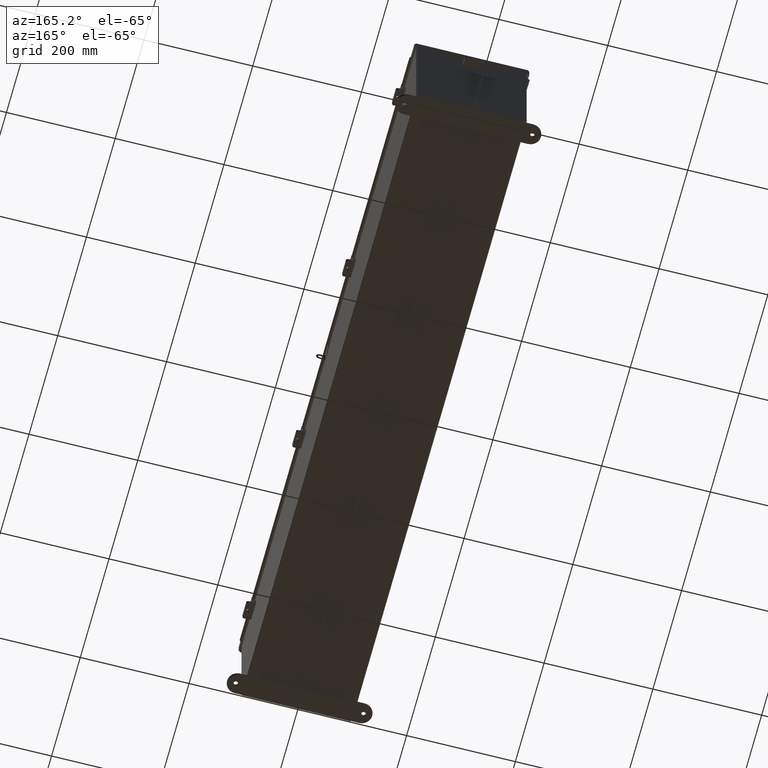
[diagram: clean part render]
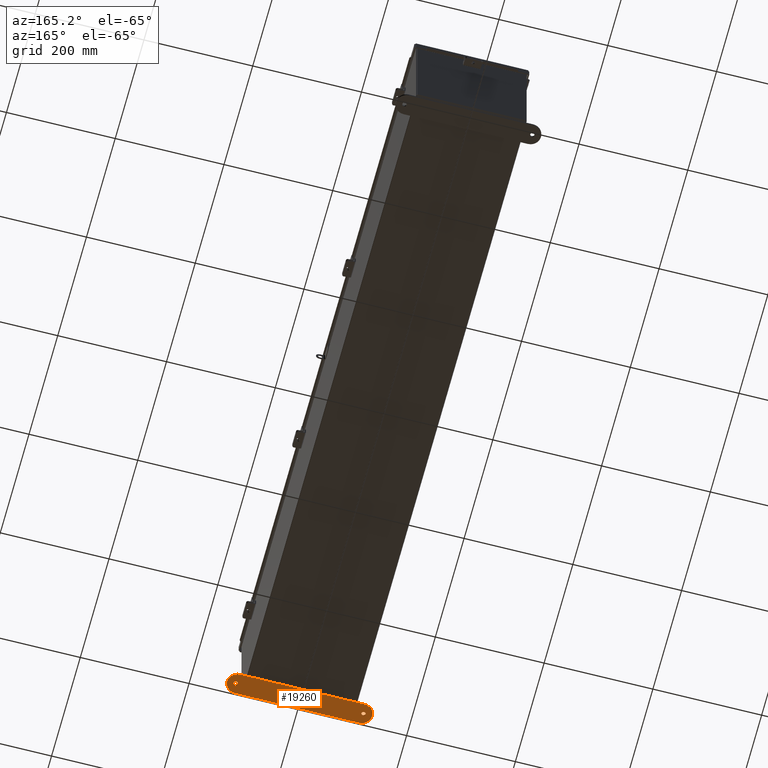
[diagram: same view with one face highlighted and labeled with its STEP entity id]
A machine part, auxiliary view. The second image highlights one B-rep face of the part: STEP entity #19260.
In plain terms, the highlighted planar face has unit normal (0, 0, -1).
Its self-contained STEP definition (entity closure, byte-faithful):
#3 = ORIENTED_EDGE ( 'NONE', *, *, #31226, .F. ) ;
#422 = CARTESIAN_POINT ( 'NONE',  ( -4.625000000000000000, 0.4120940649496085400, -0.1345000000000000100 ) ) ;
#710 = DIRECTION ( 'NONE',  ( -1.000000000000000000, 0.0000000000000000000, 0.0000000000000000000 ) ) ;
#2557 = EDGE_CURVE ( 'NONE', #21241, #34743, #15478, .T. ) ;
#2966 = CARTESIAN_POINT ( 'NONE',  ( 4.625000000000000000, 0.4120940649496085400, -0.1345000000000000100 ) ) ;
#3250 = DIRECTION ( 'NONE',  ( -1.000000000000000000, 0.0000000000000000000, 0.0000000000000000000 ) ) ;
#3530 = AXIS2_PLACEMENT_3D ( 'NONE', #34478, #17607, #710 ) ;
#3792 = CIRCLE ( 'NONE', #19156, 0.1564999999999992800 ) ;
#4240 = ORIENTED_EDGE ( 'NONE', *, *, #33153, .T. ) ;
#4517 = CARTESIAN_POINT ( 'NONE',  ( 4.499999999999999100, 0.4120940649496125900, -0.1345000000000000100 ) ) ;
#5586 = ORIENTED_EDGE ( 'NONE', *, *, #28495, .T. ) ;
#5805 = DIRECTION ( 'NONE',  ( -1.000000000000000000, 0.0000000000000000000, 0.0000000000000000000 ) ) ;
#6094 = CARTESIAN_POINT ( 'NONE',  ( -4.499999999999999100, 1.162094064949612300, -0.1345000000000000100 ) ) ;
#6168 = FACE_OUTER_BOUND ( 'NONE', #9466, .T. ) ;
#6298 = CIRCLE ( 'NONE', #3530, 0.1564999999999992800 ) ;
#6320 = CARTESIAN_POINT ( 'NONE',  ( -4.625000000000000000, 0.4120940649496085400, -0.1345000000000000100 ) ) ;
#6804 = EDGE_CURVE ( 'NONE', #34088, #21015, #6298, .T. ) ;
#7049 = AXIS2_PLACEMENT_3D ( 'NONE', #27253, #10316, #30054 ) ;
#7324 = VERTEX_POINT ( 'NONE', #6094 ) ;
#8399 = CARTESIAN_POINT ( 'NONE',  ( -4.468500000000000600, 0.4120940649496085400, -0.1345000000000000100 ) ) ;
#8478 = DIRECTION ( 'NONE',  ( 0.0000000000000000000, 0.0000000000000000000, 1.000000000000000000 ) ) ;
#9177 = DIRECTION ( 'NONE',  ( 1.000000000000000000, -1.214154663850783900E-016, 0.0000000000000000000 ) ) ;
#9188 = DIRECTION ( 'NONE',  ( -1.000000000000000000, 0.0000000000000000000, 0.0000000000000000000 ) ) ;
#9466 = EDGE_LOOP ( 'NONE', ( #28489, #28153, #33586, #35292, #3 ) ) ;
#9771 = VECTOR ( 'NONE', #12693, 39.37007874015748100 ) ;
#10316 = DIRECTION ( 'NONE',  ( 0.0000000000000000000, 0.0000000000000000000, 1.000000000000000000 ) ) ;
#10352 = AXIS2_PLACEMENT_3D ( 'NONE', #27762, #10845, #30577 ) ;
#10845 = DIRECTION ( 'NONE',  ( 0.0000000000000000000, 0.0000000000000000000, 1.000000000000000000 ) ) ;
#11765 = AXIS2_PLACEMENT_3D ( 'NONE', #2966, #22740, #5805 ) ;
#12693 = DIRECTION ( 'NONE',  ( -1.000000000000000000, -1.214154663850783900E-016, -0.0000000000000000000 ) ) ;
#12799 = ORIENTED_EDGE ( 'NONE', *, *, #30718, .F. ) ;
#14936 = CARTESIAN_POINT ( 'NONE',  ( -4.781499999999999400, 0.4120940649496085400, -0.1345000000000000100 ) ) ;
#15478 = LINE ( 'NONE', #25982, #29614 ) ;
#15858 = AXIS2_PLACEMENT_3D ( 'NONE', #4517, #32768, #15891 ) ;
#15891 = DIRECTION ( 'NONE',  ( -1.000000000000000000, 0.0000000000000000000, 0.0000000000000000000 ) ) ;
#15986 = ORIENTED_EDGE ( 'NONE', *, *, #6804, .F. ) ;
#16295 = CIRCLE ( 'NONE', #11765, 0.1564999999999992800 ) ;
#16857 = CARTESIAN_POINT ( 'NONE',  ( -4.499999999999999100, -0.3379059350503874600, -0.1345000000000000100 ) ) ;
#17045 = AXIS2_PLACEMENT_3D ( 'NONE', #6320, #26111, #9188 ) ;
#17482 = VERTEX_POINT ( 'NONE', #14936 ) ;
#17607 = DIRECTION ( 'NONE',  ( -0.0000000000000000000, -0.0000000000000000000, -1.000000000000000000 ) ) ;
#18862 = VERTEX_POINT ( 'NONE', #8399 ) ;
#19156 = AXIS2_PLACEMENT_3D ( 'NONE', #422, #20184, #3250 ) ;
#19260 = ADVANCED_FACE ( 'NONE', ( #6168, #28704, #20305 ), #29846, .T. ) ;
#19401 = EDGE_CURVE ( 'NONE', #34743, #21537, #24283, .T. ) ;
#19804 = CIRCLE ( 'NONE', #7049, 0.7499999999999998900 ) ;
#20184 = DIRECTION ( 'NONE',  ( 0.0000000000000000000, 0.0000000000000000000, 1.000000000000000000 ) ) ;
#20305 = FACE_BOUND ( 'NONE', #35331, .T. ) ;
#21015 = VERTEX_POINT ( 'NONE', #32773 ) ;
#21189 = CARTESIAN_POINT ( 'NONE',  ( 5.250000000000000900, 0.4120940649496125900, -0.1345000000000000100 ) ) ;
#21241 = VERTEX_POINT ( 'NONE', #16857 ) ;
#21537 = VERTEX_POINT ( 'NONE', #21189 ) ;
#22740 = DIRECTION ( 'NONE',  ( -0.0000000000000000000, -0.0000000000000000000, -1.000000000000000000 ) ) ;
#24283 = CIRCLE ( 'NONE', #29119, 0.7500000000000010000 ) ;
#25416 = CARTESIAN_POINT ( 'NONE',  ( 4.499999999999999100, 0.4120940649496125900, -0.1345000000000000100 ) ) ;
#25982 = CARTESIAN_POINT ( 'NONE',  ( -4.499999999999999100, -0.3379059350503874600, -0.1345000000000000100 ) ) ;
#26111 = DIRECTION ( 'NONE',  ( 0.0000000000000000000, 0.0000000000000000000, 1.000000000000000000 ) ) ;
#27253 = CARTESIAN_POINT ( 'NONE',  ( -4.499999999999999100, 0.4120940649496124300, -0.1345000000000000100 ) ) ;
#27426 = CIRCLE ( 'NONE', #17045, 0.1564999999999992800 ) ;
#27762 = CARTESIAN_POINT ( 'NONE',  ( 4.499999999999999100, 0.4120940649496125900, -0.1345000000000000100 ) ) ;
#27978 = EDGE_LOOP ( 'NONE', ( #4240, #5586 ) ) ;
#28119 = CARTESIAN_POINT ( 'NONE',  ( 4.499999999999999100, -0.3379059350503885700, -0.1345000000000000100 ) ) ;
#28153 = ORIENTED_EDGE ( 'NONE', *, *, #2557, .F. ) ;
#28246 = DIRECTION ( 'NONE',  ( -1.000000000000000000, 0.0000000000000000000, 0.0000000000000000000 ) ) ;
#28489 = ORIENTED_EDGE ( 'NONE', *, *, #19401, .F. ) ;
#28495 = EDGE_CURVE ( 'NONE', #17482, #18862, #27426, .T. ) ;
#28704 = FACE_BOUND ( 'NONE', #27978, .T. ) ;
#28955 = CARTESIAN_POINT ( 'NONE',  ( 4.499999999999999100, 1.162094064949613400, -0.1345000000000000100 ) ) ;
#29119 = AXIS2_PLACEMENT_3D ( 'NONE', #25416, #8478, #28246 ) ;
#29305 = EDGE_CURVE ( 'NONE', #33237, #7324, #31349, .T. ) ;
#29614 = VECTOR ( 'NONE', #9177, 39.37007874015748100 ) ;
#29715 = CARTESIAN_POINT ( 'NONE',  ( -4.499999999999999100, 1.162094064949612300, -0.1345000000000000100 ) ) ;
#29846 = PLANE ( 'NONE',  #15858 ) ;
#30054 = DIRECTION ( 'NONE',  ( 1.000000000000000000, 0.0000000000000000000, 0.0000000000000000000 ) ) ;
#30355 = CARTESIAN_POINT ( 'NONE',  ( 4.781499999999999400, 0.4120940649496085400, -0.1345000000000000100 ) ) ;
#30577 = DIRECTION ( 'NONE',  ( -1.000000000000000000, 0.0000000000000000000, 0.0000000000000000000 ) ) ;
#30718 = EDGE_CURVE ( 'NONE', #21015, #34088, #16295, .T. ) ;
#31226 = EDGE_CURVE ( 'NONE', #21537, #33237, #35719, .T. ) ;
#31349 = LINE ( 'NONE', #29715, #9771 ) ;
#31703 = EDGE_CURVE ( 'NONE', #7324, #21241, #19804, .T. ) ;
#32768 = DIRECTION ( 'NONE',  ( -0.0000000000000000000, 0.0000000000000000000, -1.000000000000000000 ) ) ;
#32773 = CARTESIAN_POINT ( 'NONE',  ( 4.468500000000000600, 0.4120940649496085400, -0.1345000000000000100 ) ) ;
#33153 = EDGE_CURVE ( 'NONE', #18862, #17482, #3792, .T. ) ;
#33237 = VERTEX_POINT ( 'NONE', #28955 ) ;
#33586 = ORIENTED_EDGE ( 'NONE', *, *, #31703, .F. ) ;
#34088 = VERTEX_POINT ( 'NONE', #30355 ) ;
#34478 = CARTESIAN_POINT ( 'NONE',  ( 4.625000000000000000, 0.4120940649496085400, -0.1345000000000000100 ) ) ;
#34743 = VERTEX_POINT ( 'NONE', #28119 ) ;
#35292 = ORIENTED_EDGE ( 'NONE', *, *, #29305, .F. ) ;
#35331 = EDGE_LOOP ( 'NONE', ( #15986, #12799 ) ) ;
#35719 = CIRCLE ( 'NONE', #10352, 0.7500000000000010000 ) ;